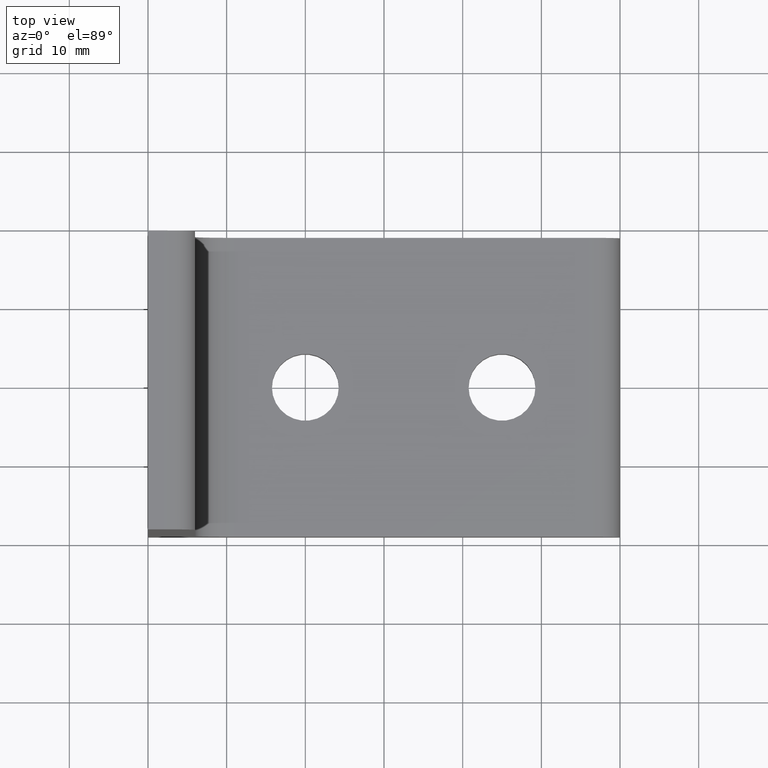
[diagram: clean part render]
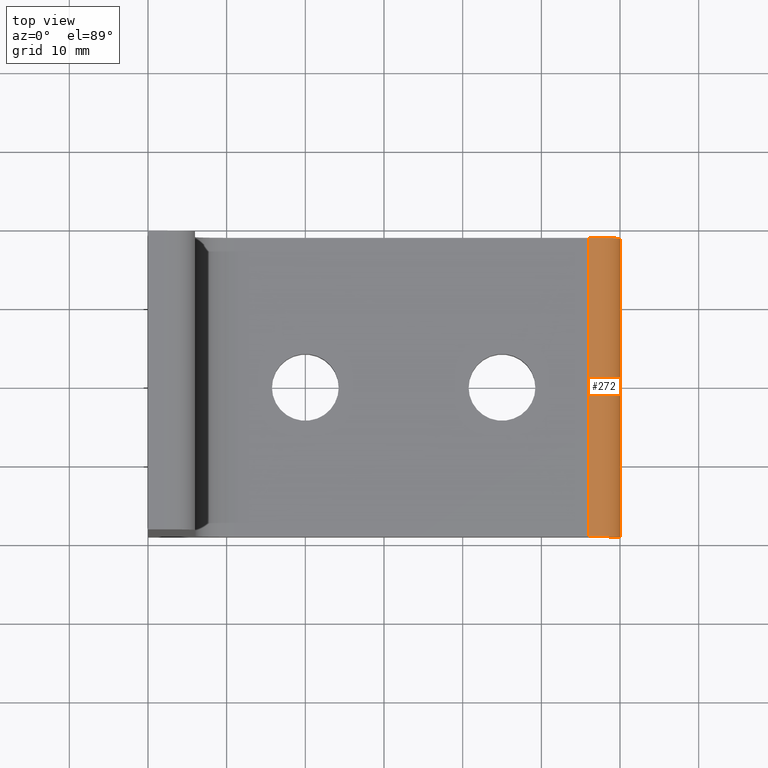
[diagram: same view with one face highlighted and labeled with its STEP entity id]
A machine part, top view. The second image highlights one B-rep face of the part: STEP entity #272.
In plain terms, the highlighted cylindrical surface (edge-blend (fillet) strip) has radius 4 mm, axis along (0, -1, 0).
Its self-contained STEP definition (entity closure, byte-faithful):
#27=CIRCLE('',#290,3.99999753756174);
#28=CIRCLE('',#291,3.99999753756174);
#41=CYLINDRICAL_SURFACE('',#289,3.99999753756174);
#49=FACE_OUTER_BOUND('',#64,.T.);
#64=EDGE_LOOP('',(#197,#198,#199,#200));
#91=LINE('',#404,#112);
#94=LINE('',#412,#115);
#112=VECTOR('',#322,38.);
#115=VECTOR('',#329,38.);
#133=VERTEX_POINT('',#401);
#134=VERTEX_POINT('',#403);
#136=VERTEX_POINT('',#409);
#137=VERTEX_POINT('',#411);
#159=EDGE_CURVE('',#133,#134,#91,.T.);
#162=EDGE_CURVE('',#133,#136,#27,.T.);
#163=EDGE_CURVE('',#136,#137,#94,.T.);
#164=EDGE_CURVE('',#134,#137,#28,.T.);
#197=ORIENTED_EDGE('',*,*,#162,.T.);
#198=ORIENTED_EDGE('',*,*,#163,.T.);
#199=ORIENTED_EDGE('',*,*,#164,.F.);
#200=ORIENTED_EDGE('',*,*,#159,.F.);
#272=ADVANCED_FACE('',(#49),#41,.T.);
#289=AXIS2_PLACEMENT_3D('',#408,#325,#326);
#290=AXIS2_PLACEMENT_3D('',#410,#327,#328);
#291=AXIS2_PLACEMENT_3D('',#413,#330,#331);
#322=DIRECTION('',(0.,-1.,0.));
#325=DIRECTION('center_axis',(0.,-1.,0.));
#326=DIRECTION('ref_axis',(1.,0.,-7.16221E-12));
#327=DIRECTION('center_axis',(0.,-1.,0.));
#328=DIRECTION('ref_axis',(0.,0.,1.));
#329=DIRECTION('',(0.,-1.,0.));
#330=DIRECTION('center_axis',(0.,-1.,0.));
#331=DIRECTION('ref_axis',(0.,0.,1.));
#401=CARTESIAN_POINT('',(59.9999866797361,19.,1.99998341995524));
#403=CARTESIAN_POINT('',(59.9999866797361,-19.,1.99998341995524));
#404=CARTESIAN_POINT('',(59.9999866797361,19.,1.99998341995524));
#408=CARTESIAN_POINT('Origin',(55.9999891421744,19.,1.99998341998389));
#409=CARTESIAN_POINT('',(55.9999891421744,19.,5.99998095754563));
#410=CARTESIAN_POINT('Origin',(55.9999891421744,19.,1.99998341998389));
#411=CARTESIAN_POINT('',(55.9999891421744,-19.,5.99998095754563));
#412=CARTESIAN_POINT('',(55.9999891421744,19.,5.99998095754563));
#413=CARTESIAN_POINT('Origin',(55.9999891421744,-19.,1.99998341998389));